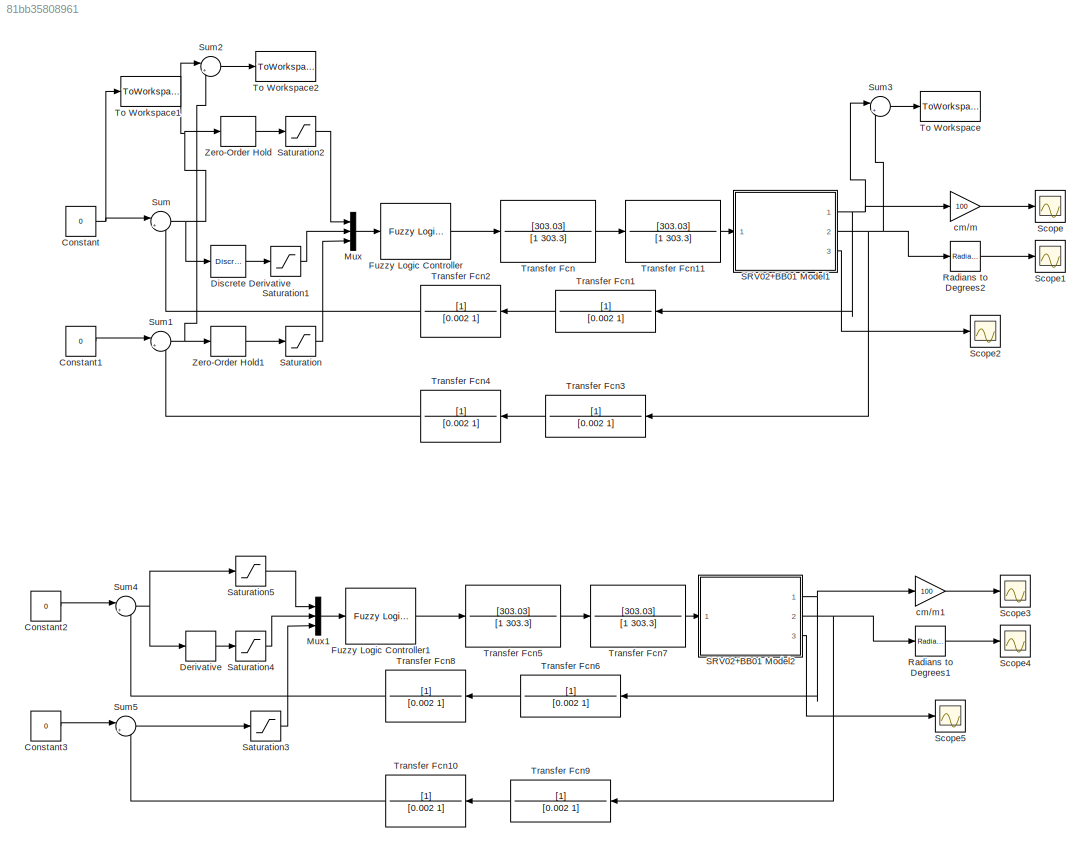
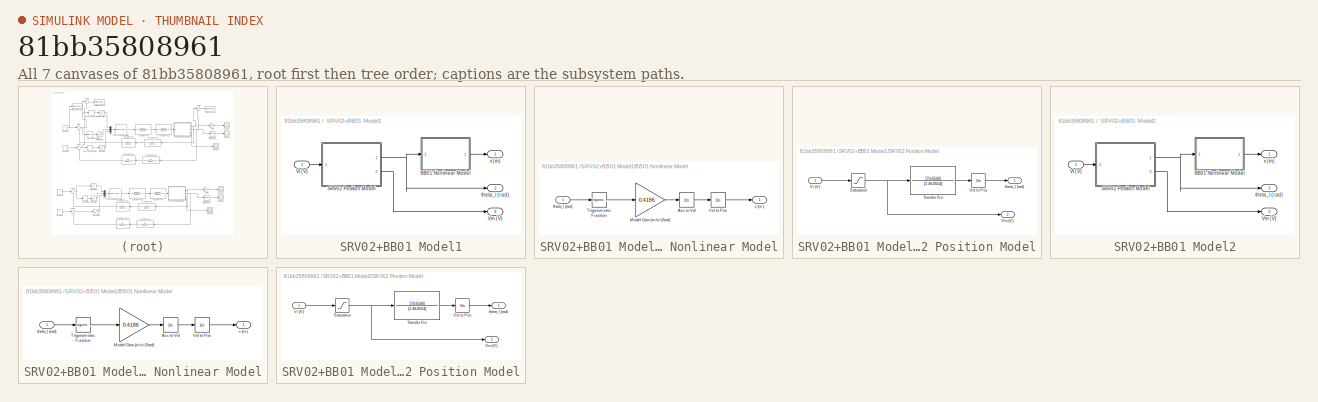
[diagram: thumbnail index - all 7 canvases of the model, root first then tree order]
MODEL slx_81bb35808961
KIND model
CONFIG AbsTol = auto
CONFIG FixedStep = auto
CONFIG MaxStep = auto
CONFIG MinStep = auto
CONFIG RelTol = 12e-3
CONFIG SampleTimeConstraint = Unconstrained
CONFIG Solver = ode45
CONFIG SolverMode = SingleTasking
CONFIG SolverName = ode45
CONFIG StartTime = 0.0
CONFIG StopTime = 7
BLOCK [Constant] Constant
  Value = 0
BLOCK [Constant] Constant1
  Value = 0
BLOCK [Constant] Constant2
  Value = 0
BLOCK [Constant] Constant3
  Value = 0
BLOCK [Derivative] Derivative
BLOCK [Reference] Discrete Derivative  REF=simulink/Discrete/Discrete Derivative
  DoSatur = off
  ICPrevScaledInput = 0.0
  InputProcessing = Elements as channels (sample based)
  LockScale = off
  OutDataType = fixdt(1, 16)
  OutDataTypeStr = Inherit: Inherit via internal rule
  OutMax = []
  OutMin = []
  OutScaling = 2^-10
  OutputDataTypeScalingMode = Inherit via internal rule
  Ports = [1, 1]
  RndMeth = Floor
  SourceBlock = simulink/Discrete/Discrete Derivative
  SourceType = Discrete Derivative
  gainval = 1.0
BLOCK [Reference] Fuzzy Logic Controller  REF=fuzblock/Fuzzy Logic   (lib defined in mdl_858b3b3e7478)
Controller
  FIS = posAngv2unicamf
  Ports = [1, 1]
  SourceBlock = fuzblock/Fuzzy Logic \nController
  SourceType = Fuzzy Inference System
BLOCK [Reference] Fuzzy Logic Controller1  REF=fuzblock/Fuzzy Logic   (lib defined in mdl_858b3b3e7478)
Controller
  FIS = posAngv2Opti
  Ports = [1, 1]
  SourceBlock = fuzblock/Fuzzy Logic \nController
  SourceType = Fuzzy Inference System
BLOCK [Mux] Mux
  DisplayOption = bar
  Inputs = 3
  Ports = [3, 1]
BLOCK [Mux] Mux1
  DisplayOption = bar
  Inputs = 3
  Ports = [3, 1]
BLOCK [Reference] Radians to Degrees1  REF=simulink_extras/Transformations/Radians
to Degrees
  Ports = [1, 1]
  SourceBlock = simulink_extras/Transformations/Radians\nto Degrees
  SourceType = RadiansToDegrees
BLOCK [Reference] Radians to Degrees2  REF=simulink_extras/Transformations/Radians
to Degrees
  Ports = [1, 1]
  SourceBlock = simulink_extras/Transformations/Radians\nto Degrees
  SourceType = RadiansToDegrees
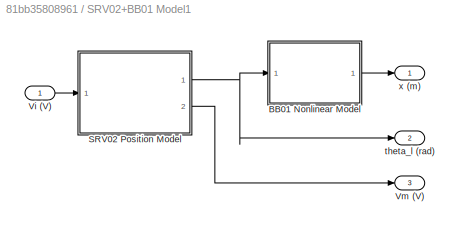
BLOCK [SubSystem] SRV02+BB01 Model1
  Ports = [1, 3]
  RequestExecContextInheritance = off
  Variant = off
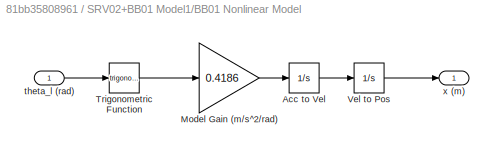
BLOCK [SubSystem] SRV02+BB01 Model1/BB01 Nonlinear Model
  Ports = [1, 1]
  RequestExecContextInheritance = off
  Variant = off
BLOCK [Integrator] SRV02+BB01 Model1/BB01 Nonlinear Model/Acc to Vel
  Ports = [1, 1]
BLOCK [Gain] SRV02+BB01 Model1/BB01 Nonlinear Model/Model Gain (m//s^2//rad)
  Gain = 0.4186
  OutDataTypeStr = Inherit: Inherit via internal rule
  ParamDataTypeStr = Inherit: Inherit via internal rule
  SaturateOnIntegerOverflow = off
BLOCK [Trigonometry] SRV02+BB01 Model1/BB01 Nonlinear Model/Trigonometric Function
  Ports = [1, 1]
BLOCK [Integrator] SRV02+BB01 Model1/BB01 Nonlinear Model/Vel to Pos
  InitialCondition = 0.05
  Ports = [1, 1]
BLOCK [Inport] SRV02+BB01 Model1/BB01 Nonlinear Model/theta_l (rad)
  IconDisplay = Port number
BLOCK [Outport] SRV02+BB01 Model1/BB01 Nonlinear Model/x (m)
  IconDisplay = Port number
BLOCK [SubSystem] SRV02+BB01 Model1/SRV02 Position Model
  Ports = [1, 2]
  RequestExecContextInheritance = off
  Variant = off
BLOCK [Saturate] SRV02+BB01 Model1/SRV02 Position Model/Saturation
  InputPortMap = u0
  LowerLimit = -5
  Ports = [1, 1]
  UpperLimit = 5
BLOCK [TransferFcn] SRV02+BB01 Model1/SRV02 Position Model/Transfer Fcn
  Denominator = [1 48.8554]
  Numerator = [74.6546]
BLOCK [Integrator] SRV02+BB01 Model1/SRV02 Position Model/Vel to Pos
  Ports = [1, 1]
BLOCK [Inport] SRV02+BB01 Model1/SRV02 Position Model/Vi (V)
  IconDisplay = Port number
BLOCK [Outport] SRV02+BB01 Model1/SRV02 Position Model/Vm (V)
  IconDisplay = Port number
  Port = 2
BLOCK [Outport] SRV02+BB01 Model1/SRV02 Position Model/theta_l (rad)
  IconDisplay = Port number
BLOCK [Inport] SRV02+BB01 Model1/Vi (V)
  IconDisplay = Port number
BLOCK [Outport] SRV02+BB01 Model1/Vm (V)
  IconDisplay = Port number
  Port = 3
BLOCK [Outport] SRV02+BB01 Model1/theta_l (rad)
  IconDisplay = Port number
  Port = 2
BLOCK [Outport] SRV02+BB01 Model1/x (m)
  IconDisplay = Port number
BLOCK [SubSystem] SRV02+BB01 Model2
  Ports = [1, 3]
  RequestExecContextInheritance = off
  Variant = off
BLOCK [SubSystem] SRV02+BB01 Model2/BB01 Nonlinear Model
  Ports = [1, 1]
  RequestExecContextInheritance = off
  Variant = off
BLOCK [Integrator] SRV02+BB01 Model2/BB01 Nonlinear Model/Acc to Vel
  Ports = [1, 1]
BLOCK [Gain] SRV02+BB01 Model2/BB01 Nonlinear Model/Model Gain (m//s^2//rad)
  Gain = 0.4186
  OutDataTypeStr = Inherit: Inherit via internal rule
  ParamDataTypeStr = Inherit: Inherit via internal rule
  SaturateOnIntegerOverflow = off
BLOCK [Trigonometry] SRV02+BB01 Model2/BB01 Nonlinear Model/Trigonometric Function
  Ports = [1, 1]
BLOCK [Integrator] SRV02+BB01 Model2/BB01 Nonlinear Model/Vel to Pos
  InitialCondition = 0.05
  Ports = [1, 1]
BLOCK [Inport] SRV02+BB01 Model2/BB01 Nonlinear Model/theta_l (rad)
  IconDisplay = Port number
BLOCK [Outport] SRV02+BB01 Model2/BB01 Nonlinear Model/x (m)
  IconDisplay = Port number
BLOCK [SubSystem] SRV02+BB01 Model2/SRV02 Position Model
  Ports = [1, 2]
  RequestExecContextInheritance = off
  Variant = off
BLOCK [Saturate] SRV02+BB01 Model2/SRV02 Position Model/Saturation
  InputPortMap = u0
  LowerLimit = -5
  Ports = [1, 1]
  UpperLimit = 5
BLOCK [TransferFcn] SRV02+BB01 Model2/SRV02 Position Model/Transfer Fcn
  Denominator = [1 48.8554]
  Numerator = [74.6546]
BLOCK [Integrator] SRV02+BB01 Model2/SRV02 Position Model/Vel to Pos
  Ports = [1, 1]
BLOCK [Inport] SRV02+BB01 Model2/SRV02 Position Model/Vi (V)
  IconDisplay = Port number
BLOCK [Outport] SRV02+BB01 Model2/SRV02 Position Model/Vm (V)
  IconDisplay = Port number
  Port = 2
BLOCK [Outport] SRV02+BB01 Model2/SRV02 Position Model/theta_l (rad)
  IconDisplay = Port number
BLOCK [Inport] SRV02+BB01 Model2/Vi (V)
  IconDisplay = Port number
BLOCK [Outport] SRV02+BB01 Model2/Vm (V)
  IconDisplay = Port number
  Port = 3
BLOCK [Outport] SRV02+BB01 Model2/theta_l (rad)
  IconDisplay = Port number
  Port = 2
BLOCK [Outport] SRV02+BB01 Model2/x (m)
  IconDisplay = Port number
BLOCK [Saturate] Saturation
  InputPortMap = u0
  LowerLimit = -0.785
  Ports = [1, 1]
  UpperLimit = 0.785
BLOCK [Saturate] Saturation1
  InputPortMap = u0
  LowerLimit = -0.2
  Ports = [1, 1]
  UpperLimit = 0.2
BLOCK [Saturate] Saturation2
  InputPortMap = u0
  LowerLimit = -0.2
  Ports = [1, 1]
  UpperLimit = 0.2
BLOCK [Saturate] Saturation3
  InputPortMap = u0
  LowerLimit = -0.785
  Ports = [1, 1]
  UpperLimit = 0.785
BLOCK [Saturate] Saturation4
  InputPortMap = u0
  LowerLimit = -0.2
  Ports = [1, 1]
  UpperLimit = 0.2
BLOCK [Saturate] Saturation5
  InputPortMap = u0
  LowerLimit = -0.2
  Ports = [1, 1]
  UpperLimit = 0.2
BLOCK [Scope] Scope
  DataFormat = Array
  Decimation = 1
  Grid = on
  LimitDataPoints = off
  MaxDataPoints = 5000
  NumInputPorts = 1
  Ports = [1]
  SampleInput = off
  SampleTime = -1
  SaveName = difuso
  SaveToWorkspace = on
  ShowLegends = off
  TickLabels = OneTimeTick
  TimeRange = auto
  YMax = 5.80482
  YMin = -2.24341
  ZoomMode = on
BLOCK [Scope] Scope1
  DataFormat = Array
  Decimation = 1
  Grid = on
  LimitDataPoints = off
  MaxDataPoints = 5000
  NumInputPorts = 1
  Ports = [1]
  SampleInput = off
  SampleTime = -1
  SaveName = angulo1
  SaveToWorkspace = on
  ShowLegends = off
  TickLabels = OneTimeTick
  TimeRange = auto
  YMax = 4.5907
  YMin = -11.90415
  ZoomMode = on
BLOCK [Scope] Scope2
  DataFormat = Array
  Decimation = 1
  Grid = on
  LimitDataPoints = off
  MaxDataPoints = 5000
  NumInputPorts = 1
  Ports = [1]
  SampleInput = off
  SampleTime = -1
  SaveName = difuso1
  SaveToWorkspace = on
  ShowLegends = off
  TickLabels = OneTimeTick
  TimeRange = auto
  YMax = 3.13289
  YMin = -3.16432
  ZoomMode = on
BLOCK [Scope] Scope3
  DataFormat = Array
  Decimation = 1
  Grid = on
  LimitDataPoints = off
  MaxDataPoints = 5000
  NumInputPorts = 1
  Ports = [1]
  SampleInput = off
  SampleTime = -1
  SaveName = difuso2
  SaveToWorkspace = on
  ShowLegends = off
  TickLabels = OneTimeTick
  TimeRange = auto
  YMax = 6.03945
  YMin = -4.35501
  ZoomMode = on
BLOCK [Scope] Scope4
  DataFormat = Array
  Decimation = 1
  Grid = on
  LimitDataPoints = off
  MaxDataPoints = 5000
  NumInputPorts = 1
  Ports = [1]
  SampleInput = off
  SampleTime = -1
  SaveName = angulo2
  SaveToWorkspace = on
  ShowLegends = off
  TickLabels = OneTimeTick
  TimeRange = auto
  YMax = 4.23655
  YMin = -6.36154
  ZoomMode = on
BLOCK [Scope] Scope5
  DataFormat = Array
  Decimation = 1
  Grid = on
  LimitDataPoints = off
  MaxDataPoints = 5000
  NumInputPorts = 1
  Ports = [1]
  SampleInput = off
  SampleTime = -1
  SaveName = difuso3
  SaveToWorkspace = on
  ShowLegends = off
  TickLabels = OneTimeTick
  TimeRange = auto
  YMax = 3.13289
  YMin = -3.16432
  ZoomMode = on
BLOCK [Sum] Sum
  IconShape = round
  InputSameDT = off
  Inputs = |+-
  OutDataTypeStr = Inherit: Inherit via internal rule
  Ports = [2, 1]
  SaturateOnIntegerOverflow = off
BLOCK [Sum] Sum1
  IconShape = round
  InputSameDT = off
  Inputs = |+-
  OutDataTypeStr = Inherit: Inherit via internal rule
  Ports = [2, 1]
  SaturateOnIntegerOverflow = off
BLOCK [Sum] Sum2
  IconShape = round
  InputSameDT = off
  Inputs = |++
  OutDataTypeStr = Inherit: Inherit via internal rule
  Ports = [2, 1]
  SaturateOnIntegerOverflow = off
BLOCK [Sum] Sum3
  IconShape = round
  InputSameDT = off
  Inputs = |++
  OutDataTypeStr = Inherit: Inherit via internal rule
  Ports = [2, 1]
  SaturateOnIntegerOverflow = off
BLOCK [Sum] Sum4
  IconShape = round
  InputSameDT = off
  Inputs = |+-
  OutDataTypeStr = Inherit: Inherit via internal rule
  Ports = [2, 1]
  SaturateOnIntegerOverflow = off
BLOCK [Sum] Sum5
  IconShape = round
  InputSameDT = off
  Inputs = |+-
  OutDataTypeStr = Inherit: Inherit via internal rule
  Ports = [2, 1]
  SaturateOnIntegerOverflow = off
BLOCK [ToWorkspace] To Workspace
  MaxDataPoints = inf
  Ports = [1]
  SampleTime = -1
  SaveFormat = Structure With Time
  VariableName = salida
BLOCK [ToWorkspace] To Workspace1
  MaxDataPoints = inf
  Ports = [1]
  SampleTime = -1
  VariableName = u
BLOCK [ToWorkspace] To Workspace2
  MaxDataPoints = inf
  Ports = [1]
  SampleTime = -1
  VariableName = ess
BLOCK [TransferFcn] Transfer Fcn
  Denominator = [1 303.3]
  Numerator = [303.03]
BLOCK [TransferFcn] Transfer Fcn1
  Denominator = [0.002 1]
BLOCK [TransferFcn] Transfer Fcn10
  Denominator = [0.002 1]
BLOCK [TransferFcn] Transfer Fcn11
  Denominator = [1 303.3]
  Numerator = [303.03]
BLOCK [TransferFcn] Transfer Fcn2
  Denominator = [0.002 1]
BLOCK [TransferFcn] Transfer Fcn3
  Denominator = [0.002 1]
BLOCK [TransferFcn] Transfer Fcn4
  Denominator = [0.002 1]
BLOCK [TransferFcn] Transfer Fcn5
  Denominator = [1 303.3]
  Numerator = [303.03]
BLOCK [TransferFcn] Transfer Fcn6
  Denominator = [0.002 1]
BLOCK [TransferFcn] Transfer Fcn7
  Denominator = [1 303.3]
  Numerator = [303.03]
BLOCK [TransferFcn] Transfer Fcn8
  Denominator = [0.002 1]
BLOCK [TransferFcn] Transfer Fcn9
  Denominator = [0.002 1]
BLOCK [ZeroOrderHold] Zero-Order Hold
  SampleTime = 12e-3
BLOCK [ZeroOrderHold] Zero-Order Hold1
  SampleTime = 12e-3
BLOCK [Gain] cm//m
  Gain = 100
  OutDataTypeStr = Inherit: Inherit via internal rule
  ParamDataTypeStr = Inherit: Inherit via internal rule
  SaturateOnIntegerOverflow = off
BLOCK [Gain] cm//m1
  Gain = 100
  OutDataTypeStr = Inherit: Inherit via internal rule
  ParamDataTypeStr = Inherit: Inherit via internal rule
  SaturateOnIntegerOverflow = off
LINE Constant1:1 -> Sum1:1
LINE Constant2:1 -> Sum4:1
LINE Constant3:1 -> Sum5:1
NET Constant:1 -> Sum:1, To Workspace1:1
LINE Derivative:1 -> Saturation4:1
LINE Discrete Derivative:1 -> Saturation1:1
LINE Fuzzy Logic Controller1:1 -> Transfer Fcn5:1
LINE Fuzzy Logic Controller:1 -> Transfer Fcn:1
LINE Mux1:1 -> Fuzzy Logic Controller1:1
LINE Mux:1 -> Fuzzy Logic Controller:1
LINE Radians to Degrees1:1 -> Scope4:1
LINE Radians to Degrees2:1 -> Scope1:1
LINE SRV02+BB01 Model1/BB01 Nonlinear Model/Acc to Vel:1 -> SRV02+BB01 Model1/BB01 Nonlinear Model/Vel to Pos:1
LINE SRV02+BB01 Model1/BB01 Nonlinear Model/Model Gain (m//s^2//rad):1 -> SRV02+BB01 Model1/BB01 Nonlinear Model/Acc to Vel:1
LINE SRV02+BB01 Model1/BB01 Nonlinear Model/Trigonometric Function:1 -> SRV02+BB01 Model1/BB01 Nonlinear Model/Model Gain (m//s^2//rad):1
LINE SRV02+BB01 Model1/BB01 Nonlinear Model/Vel to Pos:1 -> SRV02+BB01 Model1/BB01 Nonlinear Model/x (m):1
LINE SRV02+BB01 Model1/BB01 Nonlinear Model/theta_l (rad):1 -> SRV02+BB01 Model1/BB01 Nonlinear Model/Trigonometric Function:1
LINE SRV02+BB01 Model1/BB01 Nonlinear Model:1 -> SRV02+BB01 Model1/x (m):1
NET SRV02+BB01 Model1/SRV02 Position Model/Saturation:1 -> SRV02+BB01 Model1/SRV02 Position Model/Transfer Fcn:1, SRV02+BB01 Model1/SRV02 Position Model/Vm (V):1
LINE SRV02+BB01 Model1/SRV02 Position Model/Transfer Fcn:1 -> SRV02+BB01 Model1/SRV02 Position Model/Vel to Pos:1
LINE SRV02+BB01 Model1/SRV02 Position Model/Vel to Pos:1 -> SRV02+BB01 Model1/SRV02 Position Model/theta_l (rad):1
LINE SRV02+BB01 Model1/SRV02 Position Model/Vi (V):1 -> SRV02+BB01 Model1/SRV02 Position Model/Saturation:1
NET SRV02+BB01 Model1/SRV02 Position Model:1 -> SRV02+BB01 Model1/BB01 Nonlinear Model:1, SRV02+BB01 Model1/theta_l (rad):1
LINE SRV02+BB01 Model1/SRV02 Position Model:2 -> SRV02+BB01 Model1/Vm (V):1
LINE SRV02+BB01 Model1/Vi (V):1 -> SRV02+BB01 Model1/SRV02 Position Model:1
NET SRV02+BB01 Model1:1 -> Sum3:1, Transfer Fcn1:1, cm//m:1
NET SRV02+BB01 Model1:2 -> Radians to Degrees2:1, Sum3:2, Transfer Fcn3:1
LINE SRV02+BB01 Model1:3 -> Scope2:1
LINE SRV02+BB01 Model2/BB01 Nonlinear Model/Acc to Vel:1 -> SRV02+BB01 Model2/BB01 Nonlinear Model/Vel to Pos:1
LINE SRV02+BB01 Model2/BB01 Nonlinear Model/Model Gain (m//s^2//rad):1 -> SRV02+BB01 Model2/BB01 Nonlinear Model/Acc to Vel:1
LINE SRV02+BB01 Model2/BB01 Nonlinear Model/Trigonometric Function:1 -> SRV02+BB01 Model2/BB01 Nonlinear Model/Model Gain (m//s^2//rad):1
LINE SRV02+BB01 Model2/BB01 Nonlinear Model/Vel to Pos:1 -> SRV02+BB01 Model2/BB01 Nonlinear Model/x (m):1
LINE SRV02+BB01 Model2/BB01 Nonlinear Model/theta_l (rad):1 -> SRV02+BB01 Model2/BB01 Nonlinear Model/Trigonometric Function:1
LINE SRV02+BB01 Model2/BB01 Nonlinear Model:1 -> SRV02+BB01 Model2/x (m):1
NET SRV02+BB01 Model2/SRV02 Position Model/Saturation:1 -> SRV02+BB01 Model2/SRV02 Position Model/Transfer Fcn:1, SRV02+BB01 Model2/SRV02 Position Model/Vm (V):1
LINE SRV02+BB01 Model2/SRV02 Position Model/Transfer Fcn:1 -> SRV02+BB01 Model2/SRV02 Position Model/Vel to Pos:1
LINE SRV02+BB01 Model2/SRV02 Position Model/Vel to Pos:1 -> SRV02+BB01 Model2/SRV02 Position Model/theta_l (rad):1
LINE SRV02+BB01 Model2/SRV02 Position Model/Vi (V):1 -> SRV02+BB01 Model2/SRV02 Position Model/Saturation:1
NET SRV02+BB01 Model2/SRV02 Position Model:1 -> SRV02+BB01 Model2/BB01 Nonlinear Model:1, SRV02+BB01 Model2/theta_l (rad):1
LINE SRV02+BB01 Model2/SRV02 Position Model:2 -> SRV02+BB01 Model2/Vm (V):1
LINE SRV02+BB01 Model2/Vi (V):1 -> SRV02+BB01 Model2/SRV02 Position Model:1
NET SRV02+BB01 Model2:1 -> Transfer Fcn6:1, cm//m1:1
NET SRV02+BB01 Model2:2 -> Radians to Degrees1:1, Transfer Fcn9:1
LINE SRV02+BB01 Model2:3 -> Scope5:1
LINE Saturation1:1 -> Mux:2
LINE Saturation2:1 -> Mux:1
LINE Saturation3:1 -> Mux1:3
LINE Saturation4:1 -> Mux1:2
LINE Saturation5:1 -> Mux1:1
LINE Saturation:1 -> Mux:3
NET Sum1:1 -> Sum2:2, Zero-Order Hold1:1
LINE Sum2:1 -> To Workspace2:1
LINE Sum3:1 -> To Workspace:1
NET Sum4:1 -> Derivative:1, Saturation5:1
LINE Sum5:1 -> Saturation3:1
NET Sum:1 -> Discrete Derivative:1, Sum2:1, Zero-Order Hold:1
LINE Transfer Fcn10:1 -> Sum5:2
LINE Transfer Fcn11:1 -> SRV02+BB01 Model1:1
LINE Transfer Fcn1:1 -> Transfer Fcn2:1
LINE Transfer Fcn2:1 -> Sum:2
LINE Transfer Fcn3:1 -> Transfer Fcn4:1
LINE Transfer Fcn4:1 -> Sum1:2
LINE Transfer Fcn5:1 -> Transfer Fcn7:1
LINE Transfer Fcn6:1 -> Transfer Fcn8:1
LINE Transfer Fcn7:1 -> SRV02+BB01 Model2:1
LINE Transfer Fcn8:1 -> Sum4:2
LINE Transfer Fcn9:1 -> Transfer Fcn10:1
LINE Transfer Fcn:1 -> Transfer Fcn11:1
LINE Zero-Order Hold1:1 -> Saturation:1
LINE Zero-Order Hold:1 -> Saturation2:1
LINE cm//m1:1 -> Scope3:1
LINE cm//m:1 -> Scope:1
note: NET lines group one-source signal fan-out (src -> all destinations, sorted); 1:1 wires keep LINE
